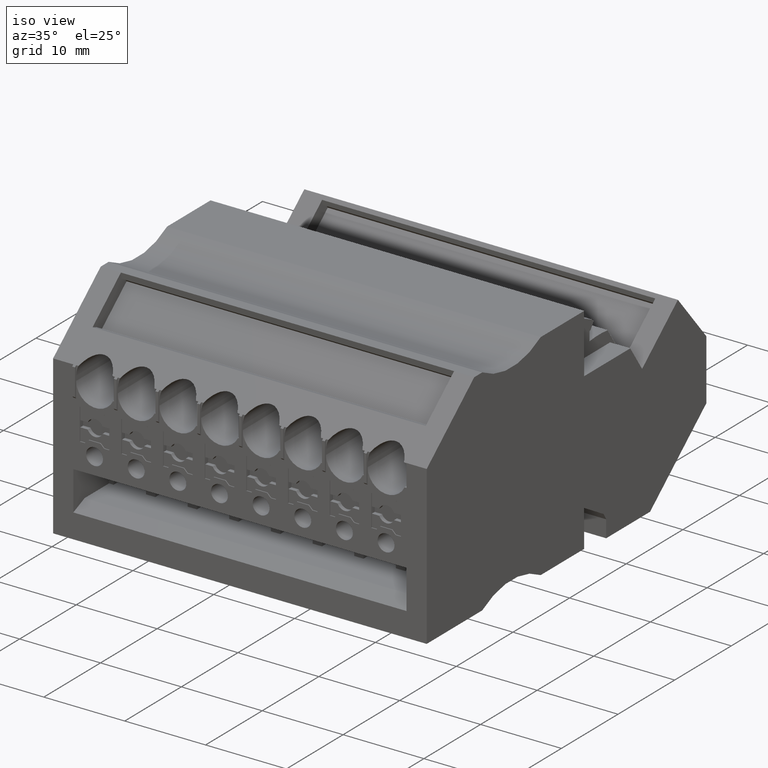
[diagram: clean part render]
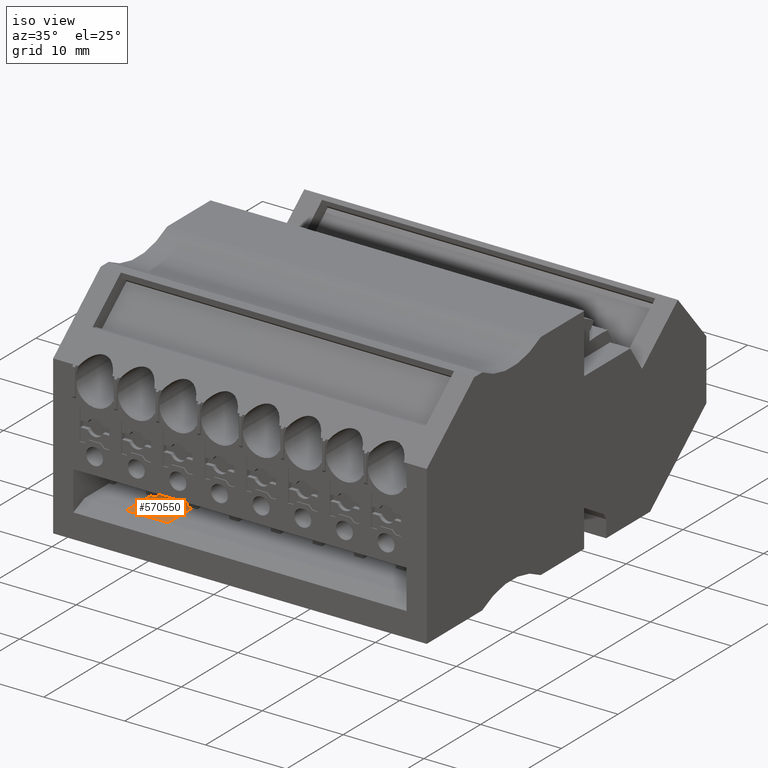
[diagram: same view with one face highlighted and labeled with its STEP entity id]
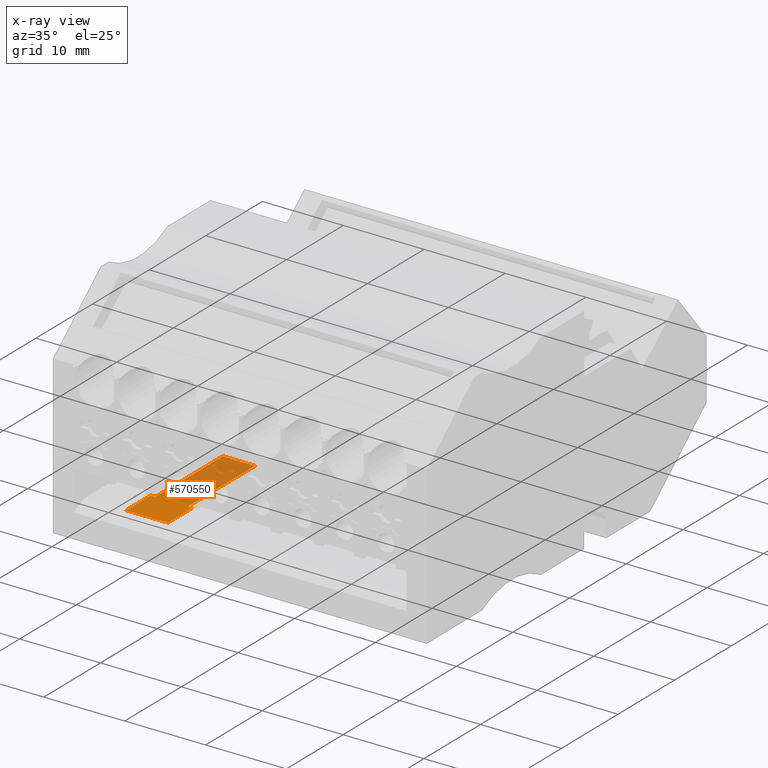
[diagram: x-ray of the same camera — body ghosted, the highlighted face saturated]
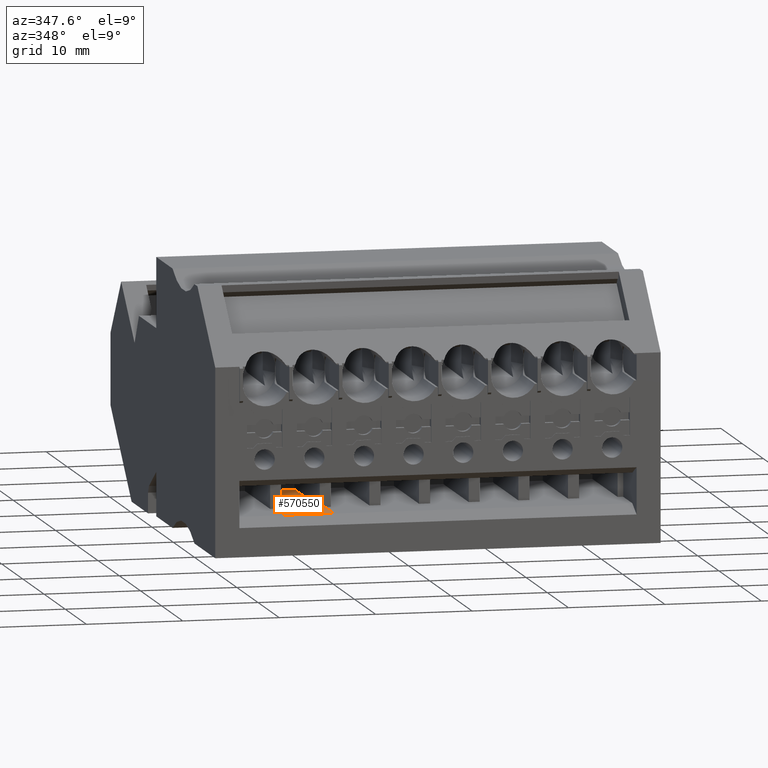
[diagram: same view with one face highlighted and labeled with its STEP entity id]
A machine part, iso view. The second image highlights one B-rep face of the part: STEP entity #570550.
The next image is the same camera in x-ray: the body ghosted, the highlighted face saturated — about 64% of this face is hidden behind the body in this view.
A second angle (auxiliary view) of the same face is appended — the face is thin or edge-on in the first view.
In plain terms, the highlighted planar face has unit normal (-0, 0, -1).
Its self-contained STEP definition (entity closure, byte-faithful):
#7120=CARTESIAN_POINT('',(426.753158778411,674.784195247969,
77.8449999871756));
#7130=VERTEX_POINT('',#7120);
#7160=CARTESIAN_POINT('',(432.119054927802,674.784195243824,
77.8449999874701));
#7170=DIRECTION('',(-1.,7.72330088771844E-10,-5.48912149887255E-11));
#7180=VECTOR('',#7170,1.);
#7190=LINE('',#7160,#7180);
#7200=CARTESIAN_POINT('',(438.648616187289,674.784195238781,
77.8449999878285));
#7210=VERTEX_POINT('',#7200);
#7220=EDGE_CURVE('',#7210,#7130,#7190,.T.);
#22120=CARTESIAN_POINT('',(426.753158777744,674.784195246006,
73.8449999872592));
#22130=VERTEX_POINT('',#22120);
#22280=CARTESIAN_POINT('',(438.648616187403,674.784195236819,
73.8449999879128));
#22290=VERTEX_POINT('',#22280);
#22320=CARTESIAN_POINT('',(432.119054928004,674.784195241861,
73.844999987554));
#22330=DIRECTION('',(1.,-7.72330088771844E-10,5.49568291694808E-11));
#22340=VECTOR('',#22330,1.);
#22350=LINE('',#22320,#22340);
#22360=EDGE_CURVE('',#22130,#22290,#22350,.T.);
#45280=CARTESIAN_POINT('',(422.4531587744,674.784195256715,
85.2749975799991));
#45290=DIRECTION('',(1.6669925506053E-10,4.90742847764455E-10,1.));
#45300=VECTOR('',#45290,1.);
#45310=LINE('',#45280,#45300);
#69210=CARTESIAN_POINT('',(426.753158774515,674.784195253394,
85.2749975792823));
#69220=DIRECTION('',(-7.72329977667826E-10,-1.,4.90742847893201E-10));
#69230=DIRECTION('',(-1.,7.72329977749632E-10,1.6669898735705E-10));
#69240=AXIS2_PLACEMENT_3D('',#69210,#69220,#69230);
#69250=PLANE('',#69240);
#148820=CARTESIAN_POINT('',(422.453158773258,674.784195253351,
78.4199999979758));
#148830=VERTEX_POINT('',#148820);
#175770=CARTESIAN_POINT('',(426.753158777927,674.784195240912,
64.6749975821617));
#175780=DIRECTION('',(1.6669925506053E-10,4.90742847764455E-10,1.));
#175790=VECTOR('',#175780,1.);
#175800=LINE('',#175770,#175790);
#175810=CARTESIAN_POINT('',(426.75315877936,674.784195247503,
73.2699999976351));
#175820=VERTEX_POINT('',#175810);
#175830=EDGE_CURVE('',#175820,#22130,#175800,.T.);
#295130=CARTESIAN_POINT('',(426.753158777074,674.784195244033,
69.8249975821618));
#295140=DIRECTION('',(1.6669925506053E-10,4.90742847764455E-10,1.));
#295150=VECTOR('',#295140,1.);
#295160=LINE('',#295130,#295150);
#295170=CARTESIAN_POINT('',(426.753158778507,674.78419525003,
78.4199999976351));
#295180=VERTEX_POINT('',#295170);
#321630=CARTESIAN_POINT('',(432.119054925995,674.784195245886,
78.4199999972099));
#321640=DIRECTION('',(-1.,7.72330088771899E-10,7.92260300987696E-11));
#321650=VECTOR('',#321640,1.);
#321660=LINE('',#321630,#321650);
#321670=EDGE_CURVE('',#295180,#148830,#321660,.T.);
#330880=EDGE_CURVE('',#7130,#295180,#295160,.T.);
#386160=CARTESIAN_POINT('',(438.648616187419,674.784195236536,
73.2699999978018));
#386170=DIRECTION('',(-2.83248384201081E-11,4.90742847915077E-10,1.));
#386180=VECTOR('',#386170,1.);
#386190=LINE('',#386160,#386180);
#386200=EDGE_CURVE('',#22290,#7210,#386190,.T.);
#418880=CARTESIAN_POINT('',(422.453158772399,674.784195250824,
73.2699999979758));
#418890=VERTEX_POINT('',#418880);
#418920=EDGE_CURVE('',#418890,#148830,#45310,.T.);
#470400=CARTESIAN_POINT('',(432.119054926254,674.784195243358,
73.26999999721));
#470410=DIRECTION('',(-1.,7.72330088771899E-10,7.92260300987696E-11));
#470420=VECTOR('',#470410,1.);
#470430=LINE('',#470400,#470420);
#470440=EDGE_CURVE('',#175820,#418890,#470430,.T.);
#570450=ORIENTED_EDGE('',*,*,#418920,.T.);
#570460=ORIENTED_EDGE('',*,*,#470440,.T.);
#570470=ORIENTED_EDGE('',*,*,#175830,.F.);
#570480=ORIENTED_EDGE('',*,*,#22360,.F.);
#570490=ORIENTED_EDGE('',*,*,#386200,.F.);
#570500=ORIENTED_EDGE('',*,*,#7220,.F.);
#570510=ORIENTED_EDGE('',*,*,#330880,.F.);
#570520=ORIENTED_EDGE('',*,*,#321670,.F.);
#570530=EDGE_LOOP('',(#570520,#570510,#570500,#570490,#570480,#570470,
#570460,#570450));
#570540=FACE_OUTER_BOUND('',#570530,.T.);
#570550=ADVANCED_FACE('',(#570540),#69250,.F.);